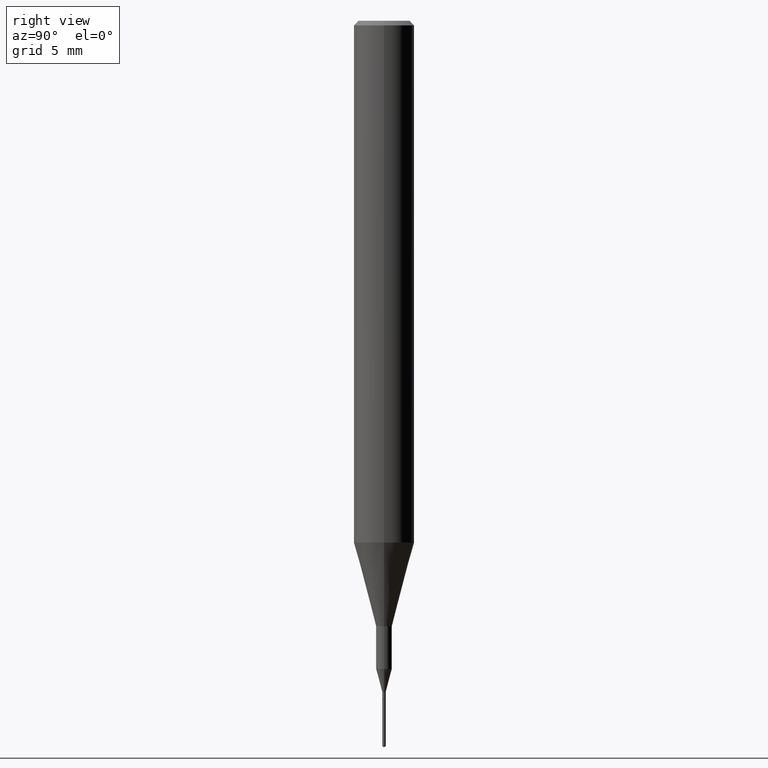
[diagram: clean part render]
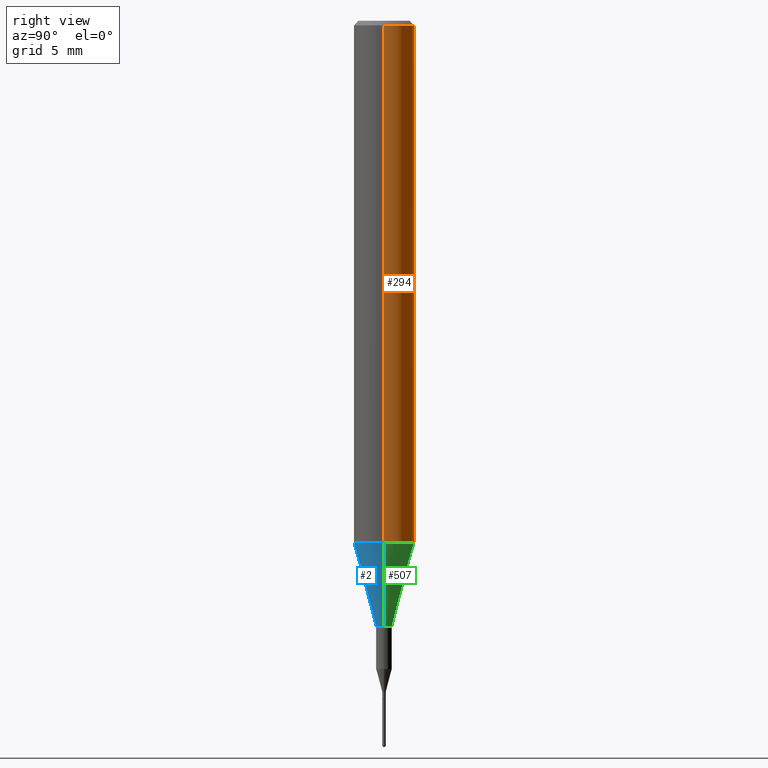
[diagram: same view with three faces highlighted in distinct colors, each labeled with its STEP entity id]
A machine part, right view with three faces highlighted in distinct colors.
Their STEP definitions:

[orange] entity #294 — the highlighted cylindrical surface (edge-blend (fillet) strip) has radius 1.5875 mm, axis along (-0, 0, 1).
#7 = CARTESIAN_POINT ( 'NONE',  ( 0.000000000000000000, 0.000000000000000000, 0.000000000000000000 ) ) ;
#9 = CARTESIAN_POINT ( 'NONE',  ( 2.634730117954813298E-29, -3.761696332605275695E-15, -1.077392650149939346 ) ) ;
#11 = EDGE_CURVE ( 'NONE', #154, #293, #531, .T. ) ;
#27 = DIRECTION ( 'NONE',  ( -2.445468806185136877E-29, 3.491481338843145188E-15, 1.000000000000000000 ) ) ;
#50 = DIRECTION ( 'NONE',  ( -2.445468806185136877E-29, 3.491481338843145188E-15, 1.000000000000000000 ) ) ;
#102 = LINE ( 'NONE', #332, #261 ) ;
#109 = ORIENTED_EDGE ( 'NONE', *, *, #11, .F. ) ;
#118 = AXIS2_PLACEMENT_3D ( 'NONE', #9, #412, #195 ) ;
#134 = DIRECTION ( 'NONE',  ( 1.000000000000000000, -6.982962677686266711E-15, 0.000000000000000000 ) ) ;
#140 = CYLINDRICAL_SURFACE ( 'NONE', #311, 0.06250000000000006939 ) ;
#154 = VERTEX_POINT ( 'NONE', #214 ) ;
#179 = CARTESIAN_POINT ( 'NONE',  ( 0.06250000000000012490, -4.198131499960668153E-15, -1.077392650149939346 ) ) ;
#191 = DIRECTION ( 'NONE',  ( -2.445468806185136597E-29, 3.491481338843145583E-15, 1.000000000000000000 ) ) ;
#195 = DIRECTION ( 'NONE',  ( 1.000000000000000000, -6.982962677686264344E-15, 0.000000000000000000 ) ) ;
#214 = CARTESIAN_POINT ( 'NONE',  ( 0.06250000000000000000, -4.691678049070463404E-16, -0.009375000000000062103 ) ) ;
#229 = EDGE_CURVE ( 'NONE', #255, #154, #528, .T. ) ;
#255 = VERTEX_POINT ( 'NONE', #179 ) ;
#261 = VECTOR ( 'NONE', #50, 39.37007874015748143 ) ;
#263 = EDGE_LOOP ( 'NONE', ( #512, #329, #109, #320 ) ) ;
#268 = CARTESIAN_POINT ( 'NONE',  ( -0.06250000000000012490, -3.317607122755211895E-15, -1.077392650149939346 ) ) ;
#293 = VERTEX_POINT ( 'NONE', #549 ) ;
#294 = ADVANCED_FACE ( 'NONE', ( #502 ), #140, .T. ) ;
#302 = CARTESIAN_POINT ( 'NONE',  ( 0.06250000000000006939, -4.364351673553921624E-16, 3.047610484872463374E-30 ) ) ;
#311 = AXIS2_PLACEMENT_3D ( 'NONE', #7, #191, #360 ) ;
#316 = AXIS2_PLACEMENT_3D ( 'NONE', #356, #590, #134 ) ;
#320 = ORIENTED_EDGE ( 'NONE', *, *, #229, .F. ) ;
#329 = ORIENTED_EDGE ( 'NONE', *, *, #361, .T. ) ;
#332 = CARTESIAN_POINT ( 'NONE',  ( -0.06250000000000006939, 4.440892098500631092E-16, -3.074334431409319267E-30 ) ) ;
#347 = CIRCLE ( 'NONE', #118, 0.06250000000000012490 ) ;
#354 = VERTEX_POINT ( 'NONE', #268 ) ;
#356 = CARTESIAN_POINT ( 'NONE',  ( 2.292627005798580623E-31, -3.273263755165470801E-17, -0.009375000000000062103 ) ) ;
#360 = DIRECTION ( 'NONE',  ( 1.000000000000000000, -6.982962677686266711E-15, 4.876176775795935793E-29 ) ) ;
#361 = EDGE_CURVE ( 'NONE', #354, #293, #102, .T. ) ;
#385 = EDGE_CURVE ( 'NONE', #255, #354, #347, .T. ) ;
#412 = DIRECTION ( 'NONE',  ( -2.445468806185136597E-29, 3.491481338843145583E-15, 1.000000000000000000 ) ) ;
#502 = FACE_OUTER_BOUND ( 'NONE', #263, .T. ) ;
#512 = ORIENTED_EDGE ( 'NONE', *, *, #385, .T. ) ;
#528 = LINE ( 'NONE', #302, #562 ) ;
#531 = CIRCLE ( 'NONE', #316, 0.06250000000000000000 ) ;
#549 = CARTESIAN_POINT ( 'NONE',  ( -0.06250000000000000000, -1.453125275228401137E-15, -0.009375000000000062103 ) ) ;
#562 = VECTOR ( 'NONE', #27, 39.37007874015748143 ) ;
#590 = DIRECTION ( 'NONE',  ( -2.445468806185136597E-29, 3.491481338843145583E-15, 1.000000000000000000 ) ) ;

[blue] entity #2 — the highlighted conical surface has half-angle 15 deg.
#2 = ADVANCED_FACE ( 'NONE', ( #43 ), #189, .T. ) ;
#15 = AXIS2_PLACEMENT_3D ( 'NONE', #49, #237, #193 ) ;
#24 = EDGE_CURVE ( 'NONE', #568, #580, #62, .T. ) ;
#33 = LINE ( 'NONE', #127, #439 ) ;
#43 = FACE_OUTER_BOUND ( 'NONE', #335, .T. ) ;
#49 = CARTESIAN_POINT ( 'NONE',  ( 3.056836007731421306E-29, -4.364351673553932471E-15, -1.250000000000000000 ) ) ;
#61 = CARTESIAN_POINT ( 'NONE',  ( 0.01624999999999999709, -4.477824817066334148E-15, -1.250000000000000000 ) ) ;
#62 = CIRCLE ( 'NONE', #15, 0.01624999999999999709 ) ;
#117 = ORIENTED_EDGE ( 'NONE', *, *, #248, .F. ) ;
#127 = CARTESIAN_POINT ( 'NONE',  ( -0.06250000000000012490, -3.317607122755211895E-15, -1.077392650149939346 ) ) ;
#165 = DIRECTION ( 'NONE',  ( -0.2588190451025214611, 5.211531920934551042E-15, 0.9659258262890682012 ) ) ;
#174 = EDGE_CURVE ( 'NONE', #580, #255, #581, .T. ) ;
#179 = CARTESIAN_POINT ( 'NONE',  ( 0.06250000000000012490, -4.198131499960668153E-15, -1.077392650149939346 ) ) ;
#189 = CONICAL_SURFACE ( 'NONE', #282, 0.06250000000000012490, 0.2617993877991501295 ) ;
#193 = DIRECTION ( 'NONE',  ( 1.000000000000000000, -6.982962677686288799E-15, 0.000000000000000000 ) ) ;
#201 = AXIS2_PLACEMENT_3D ( 'NONE', #410, #466, #224 ) ;
#206 = ORIENTED_EDGE ( 'NONE', *, *, #174, .T. ) ;
#224 = DIRECTION ( 'NONE',  ( 1.000000000000000000, -6.982962677686264344E-15, 0.000000000000000000 ) ) ;
#230 = CARTESIAN_POINT ( 'NONE',  ( 2.634730117954813298E-29, -3.761696332605275695E-15, -1.077392650149939346 ) ) ;
#237 = DIRECTION ( 'NONE',  ( -2.445468806185136597E-29, 3.491481338843145583E-15, 1.000000000000000000 ) ) ;
#248 = EDGE_CURVE ( 'NONE', #354, #255, #452, .T. ) ;
#252 = ORIENTED_EDGE ( 'NONE', *, *, #24, .T. ) ;
#255 = VERTEX_POINT ( 'NONE', #179 ) ;
#268 = CARTESIAN_POINT ( 'NONE',  ( -0.06250000000000012490, -3.317607122755211895E-15, -1.077392650149939346 ) ) ;
#282 = AXIS2_PLACEMENT_3D ( 'NONE', #230, #398, #393 ) ;
#303 = DIRECTION ( 'NONE',  ( 0.2588190451025214611, 1.565188264969621573E-15, 0.9659258262890682012 ) ) ;
#308 = ORIENTED_EDGE ( 'NONE', *, *, #431, .F. ) ;
#328 = CARTESIAN_POINT ( 'NONE',  ( -0.01624999999999999709, -4.403217112386333737E-15, -1.250000000000000000 ) ) ;
#335 = EDGE_LOOP ( 'NONE', ( #308, #252, #206, #117 ) ) ;
#354 = VERTEX_POINT ( 'NONE', #268 ) ;
#357 = VECTOR ( 'NONE', #303, 39.37007874015747433 ) ;
#393 = DIRECTION ( 'NONE',  ( 1.000000000000000000, -6.982962677686264344E-15, 0.000000000000000000 ) ) ;
#398 = DIRECTION ( 'NONE',  ( -2.445468806185136597E-29, 3.491481338843145583E-15, 1.000000000000000000 ) ) ;
#410 = CARTESIAN_POINT ( 'NONE',  ( 2.634730117954813298E-29, -3.761696332605275695E-15, -1.077392650149939346 ) ) ;
#431 = EDGE_CURVE ( 'NONE', #568, #354, #33, .T. ) ;
#439 = VECTOR ( 'NONE', #165, 39.37007874015747433 ) ;
#452 = CIRCLE ( 'NONE', #201, 0.06250000000000012490 ) ;
#466 = DIRECTION ( 'NONE',  ( -2.445468806185136597E-29, 3.491481338843145583E-15, 1.000000000000000000 ) ) ;
#530 = CARTESIAN_POINT ( 'NONE',  ( 0.06250000000000012490, -4.198131499960668153E-15, -1.077392650149939346 ) ) ;
#568 = VERTEX_POINT ( 'NONE', #328 ) ;
#580 = VERTEX_POINT ( 'NONE', #61 ) ;
#581 = LINE ( 'NONE', #530, #357 ) ;

[green] entity #507 — the highlighted conical surface has half-angle 15 deg.
#9 = CARTESIAN_POINT ( 'NONE',  ( 2.634730117954813298E-29, -3.761696332605275695E-15, -1.077392650149939346 ) ) ;
#20 = DIRECTION ( 'NONE',  ( 1.000000000000000000, -6.982962677686288799E-15, 0.000000000000000000 ) ) ;
#23 = AXIS2_PLACEMENT_3D ( 'NONE', #273, #397, #20 ) ;
#33 = LINE ( 'NONE', #127, #439 ) ;
#37 = AXIS2_PLACEMENT_3D ( 'NONE', #371, #506, #323 ) ;
#61 = CARTESIAN_POINT ( 'NONE',  ( 0.01624999999999999709, -4.477824817066334148E-15, -1.250000000000000000 ) ) ;
#118 = AXIS2_PLACEMENT_3D ( 'NONE', #9, #412, #195 ) ;
#123 = EDGE_CURVE ( 'NONE', #580, #568, #301, .T. ) ;
#127 = CARTESIAN_POINT ( 'NONE',  ( -0.06250000000000012490, -3.317607122755211895E-15, -1.077392650149939346 ) ) ;
#165 = DIRECTION ( 'NONE',  ( -0.2588190451025214611, 5.211531920934551042E-15, 0.9659258262890682012 ) ) ;
#174 = EDGE_CURVE ( 'NONE', #580, #255, #581, .T. ) ;
#179 = CARTESIAN_POINT ( 'NONE',  ( 0.06250000000000012490, -4.198131499960668153E-15, -1.077392650149939346 ) ) ;
#180 = ORIENTED_EDGE ( 'NONE', *, *, #123, .T. ) ;
#195 = DIRECTION ( 'NONE',  ( 1.000000000000000000, -6.982962677686264344E-15, 0.000000000000000000 ) ) ;
#255 = VERTEX_POINT ( 'NONE', #179 ) ;
#268 = CARTESIAN_POINT ( 'NONE',  ( -0.06250000000000012490, -3.317607122755211895E-15, -1.077392650149939346 ) ) ;
#273 = CARTESIAN_POINT ( 'NONE',  ( 3.056836007731421306E-29, -4.364351673553932471E-15, -1.250000000000000000 ) ) ;
#291 = ORIENTED_EDGE ( 'NONE', *, *, #431, .T. ) ;
#292 = CONICAL_SURFACE ( 'NONE', #37, 0.06250000000000012490, 0.2617993877991501295 ) ;
#301 = CIRCLE ( 'NONE', #23, 0.01624999999999999709 ) ;
#303 = DIRECTION ( 'NONE',  ( 0.2588190451025214611, 1.565188264969621573E-15, 0.9659258262890682012 ) ) ;
#323 = DIRECTION ( 'NONE',  ( 1.000000000000000000, -6.982962677686264344E-15, 0.000000000000000000 ) ) ;
#328 = CARTESIAN_POINT ( 'NONE',  ( -0.01624999999999999709, -4.403217112386333737E-15, -1.250000000000000000 ) ) ;
#347 = CIRCLE ( 'NONE', #118, 0.06250000000000012490 ) ;
#354 = VERTEX_POINT ( 'NONE', #268 ) ;
#357 = VECTOR ( 'NONE', #303, 39.37007874015747433 ) ;
#359 = ORIENTED_EDGE ( 'NONE', *, *, #174, .F. ) ;
#371 = CARTESIAN_POINT ( 'NONE',  ( 2.634730117954813298E-29, -3.761696332605275695E-15, -1.077392650149939346 ) ) ;
#385 = EDGE_CURVE ( 'NONE', #255, #354, #347, .T. ) ;
#397 = DIRECTION ( 'NONE',  ( -2.445468806185136597E-29, 3.491481338843145583E-15, 1.000000000000000000 ) ) ;
#412 = DIRECTION ( 'NONE',  ( -2.445468806185136597E-29, 3.491481338843145583E-15, 1.000000000000000000 ) ) ;
#431 = EDGE_CURVE ( 'NONE', #568, #354, #33, .T. ) ;
#439 = VECTOR ( 'NONE', #165, 39.37007874015747433 ) ;
#449 = EDGE_LOOP ( 'NONE', ( #180, #291, #511, #359 ) ) ;
#464 = FACE_OUTER_BOUND ( 'NONE', #449, .T. ) ;
#506 = DIRECTION ( 'NONE',  ( -2.445468806185136597E-29, 3.491481338843145583E-15, 1.000000000000000000 ) ) ;
#507 = ADVANCED_FACE ( 'NONE', ( #464 ), #292, .T. ) ;
#511 = ORIENTED_EDGE ( 'NONE', *, *, #385, .F. ) ;
#530 = CARTESIAN_POINT ( 'NONE',  ( 0.06250000000000012490, -4.198131499960668153E-15, -1.077392650149939346 ) ) ;
#568 = VERTEX_POINT ( 'NONE', #328 ) ;
#580 = VERTEX_POINT ( 'NONE', #61 ) ;
#581 = LINE ( 'NONE', #530, #357 ) ;